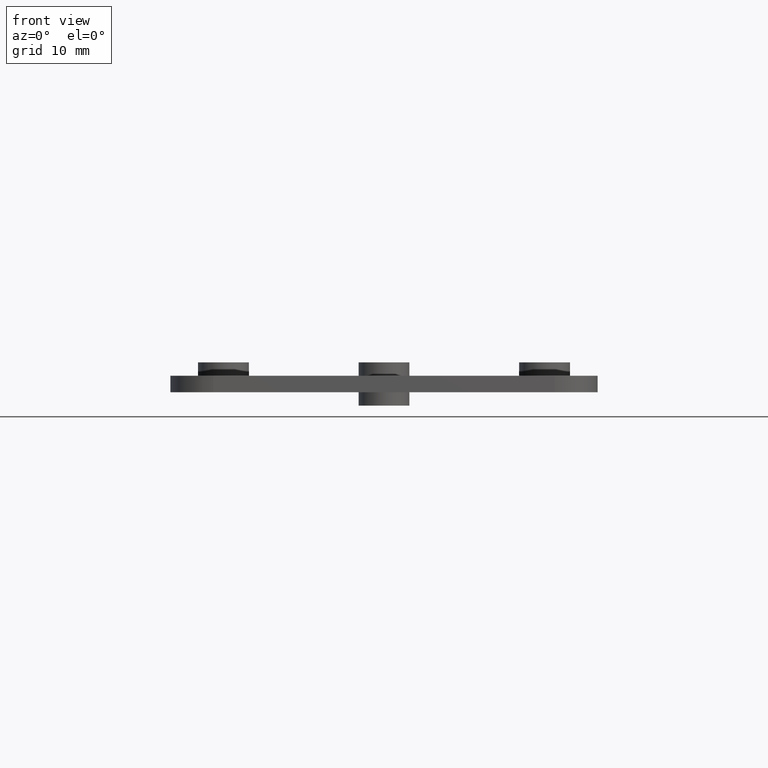
[diagram: clean part render]
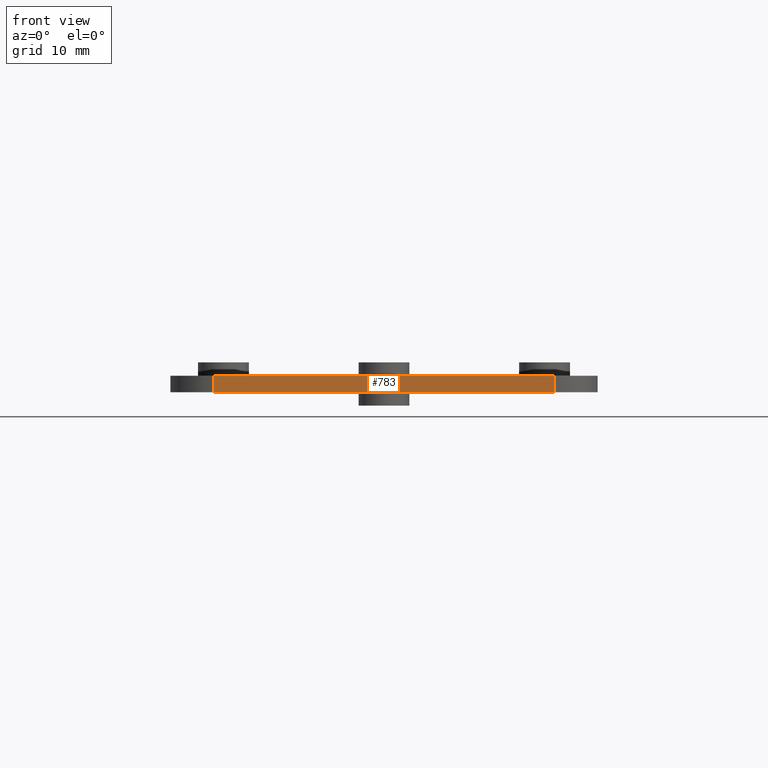
[diagram: same view with one face highlighted and labeled with its STEP entity id]
A machine part, front view. The second image highlights one B-rep face of the part: STEP entity #783.
In plain terms, the highlighted planar face has unit normal (0, -1, 0).
Its self-contained STEP definition (entity closure, byte-faithful):
#725=CARTESIAN_POINT('',(-3.283154132545632,-21.385901912274157,1.550000000000000));
#726=VERTEX_POINT('',#725);
#734=CARTESIAN_POINT('',(-3.283154132545632,-21.385901912274157,0.0));
#735=VERTEX_POINT('',#734);
#736=CARTESIAN_POINT('',(-3.283154132545632,-21.385901912274157,0.0));
#737=DIRECTION('',(0.0,0.0,1.0));
#738=VECTOR('',#737,1.550000000000000);
#739=LINE('',#736,#738);
#740=EDGE_CURVE('',#735,#726,#739,.T.);
#753=CARTESIAN_POINT('',(-3.283154132545632,-21.385901912274157,0.0));
#754=DIRECTION('',(0.0,-1.0,0.0));
#755=DIRECTION('',(0.0,0.0,-1.0));
#756=AXIS2_PLACEMENT_3D('',#753,#754,#755);
#757=PLANE('',#756);
#758=CARTESIAN_POINT('',(-35.183154132545624,-21.385901912274154,1.550000000000000));
#759=VERTEX_POINT('',#758);
#760=CARTESIAN_POINT('',(-3.283154132545632,-21.385901912274157,1.550000000000000));
#761=DIRECTION('',(-1.0,0.0,0.0));
#762=VECTOR('',#761,31.899999999999991);
#763=LINE('',#760,#762);
#764=EDGE_CURVE('',#726,#759,#763,.T.);
#765=ORIENTED_EDGE('',*,*,#764,.T.);
#766=CARTESIAN_POINT('',(-35.183154132545624,-21.385901912274154,0.0));
#767=VERTEX_POINT('',#766);
#768=CARTESIAN_POINT('',(-35.183154132545624,-21.385901912274154,0.0));
#769=DIRECTION('',(0.0,0.0,1.0));
#770=VECTOR('',#769,1.550000000000000);
#771=LINE('',#768,#770);
#772=EDGE_CURVE('',#767,#759,#771,.T.);
#773=ORIENTED_EDGE('',*,*,#772,.F.);
#774=CARTESIAN_POINT('',(-35.183154132545624,-21.385901912274154,0.0));
#775=DIRECTION('',(1.0,0.0,0.0));
#776=VECTOR('',#775,31.899999999999991);
#777=LINE('',#774,#776);
#778=EDGE_CURVE('',#767,#735,#777,.T.);
#779=ORIENTED_EDGE('',*,*,#778,.T.);
#780=ORIENTED_EDGE('',*,*,#740,.T.);
#781=EDGE_LOOP('',(#765,#773,#779,#780));
#782=FACE_OUTER_BOUND('',#781,.T.);
#783=ADVANCED_FACE('',(#782),#757,.T.);